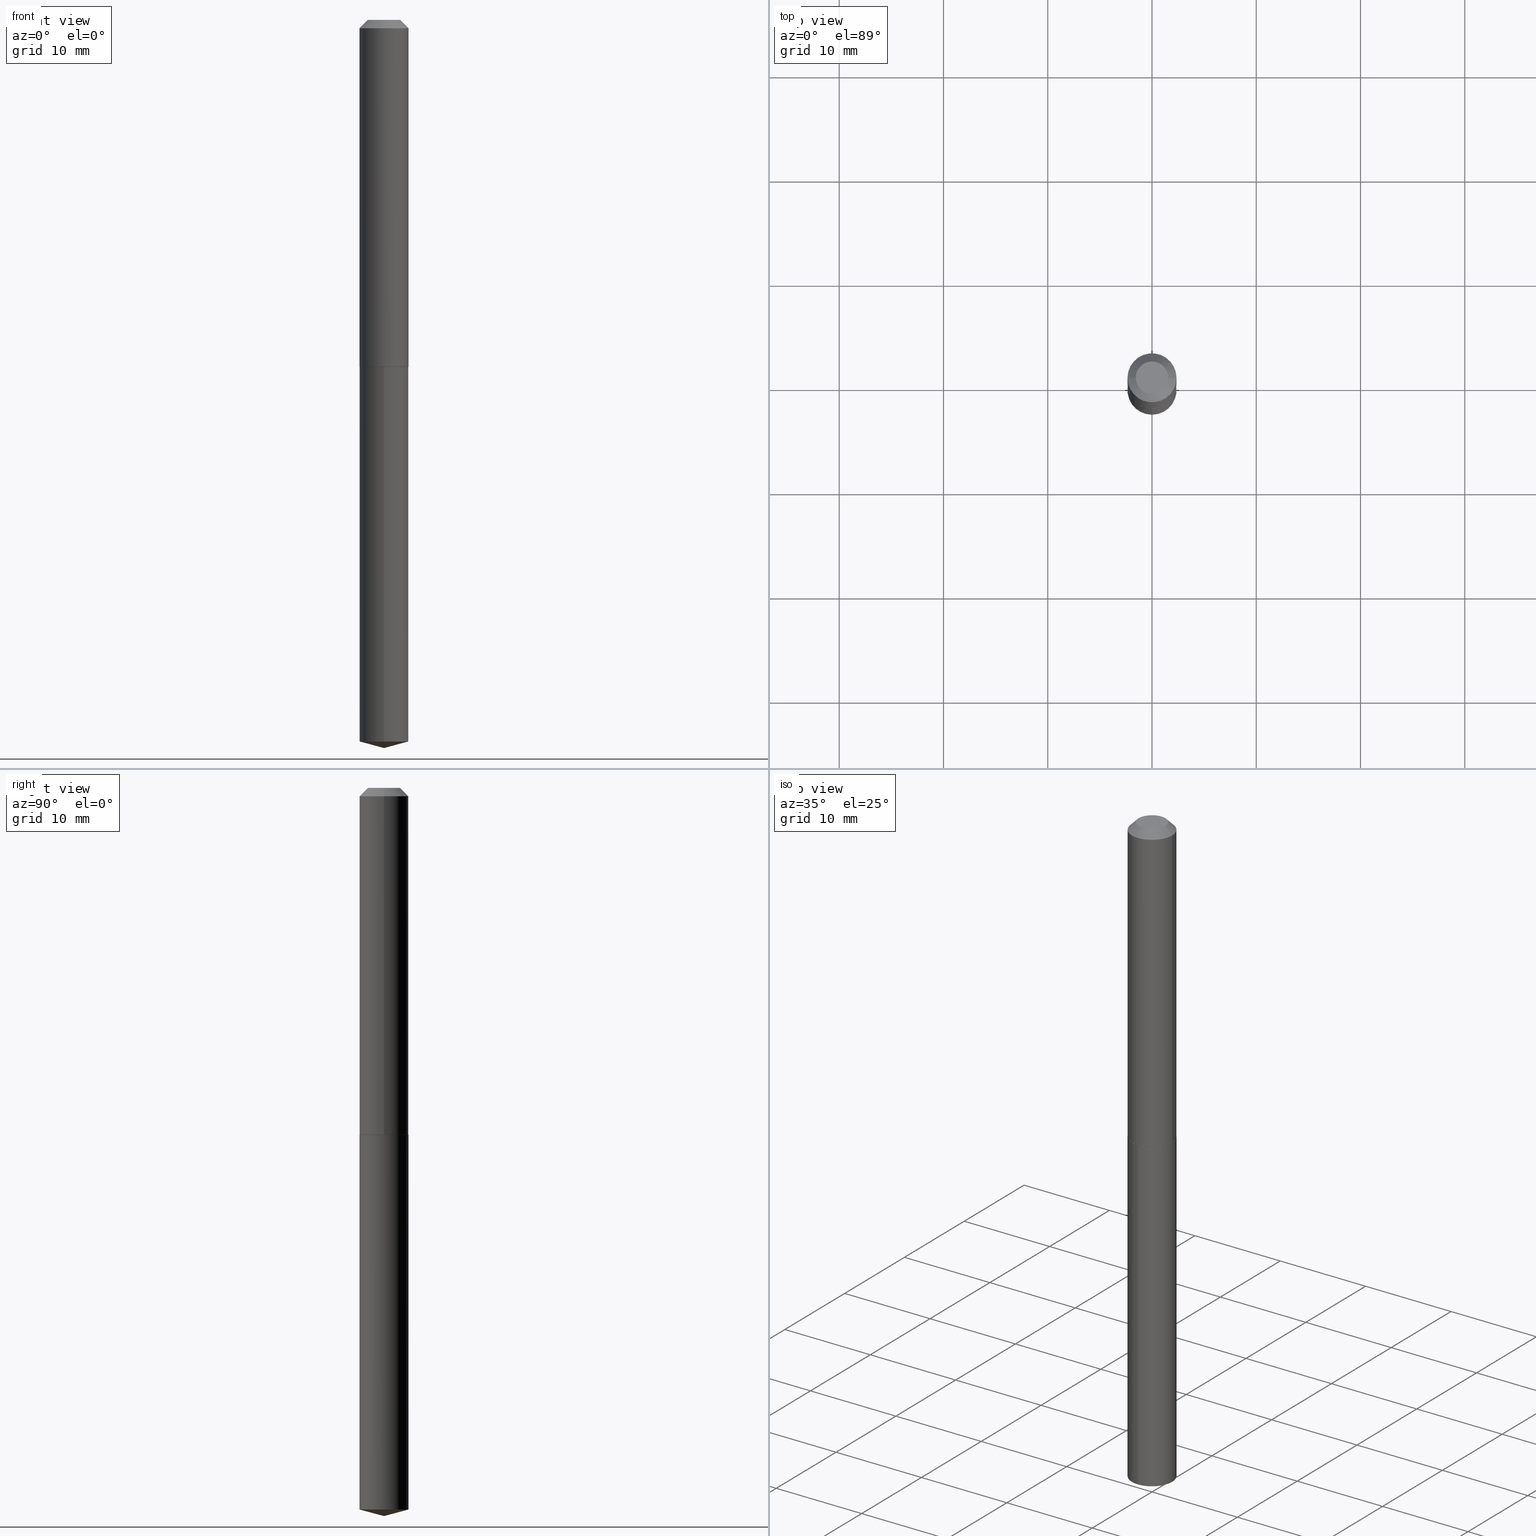
[diagram: canonical four-view strip — front | top / right | iso, engineering-drawing reading convention]
A machine part, canonical four-view strip (front | top / right | iso — engineering-drawing reading convention). The complete STEP part file that produces these views, byte-faithful:
ISO-10303-21;
HEADER;
FILE_DESCRIPTION (( 'STEP AP203' ),
    '1' );
FILE_NAME ('53013.STEP',
    '2024-04-22T18:53:55',
    ( '' ),
    ( '' ),
    'SwSTEP 2.0',
    'SolidWorks 2023',
    '' );
FILE_SCHEMA (( 'CONFIG_CONTROL_DESIGN' ));
ENDSEC;

DATA;
#1 = FACE_OUTER_BOUND ( 'NONE', #173, .T. ) ;
#2 = AXIS2_PLACEMENT_3D ( 'NONE', #155, #100, #257 ) ;
#3 = DIRECTION ( 'NONE',  ( -1.000000000000000000, 6.982962677686266711E-15, 0.000000000000000000 ) ) ;
#4 = DIRECTION ( 'NONE',  ( 1.000000000000000000, -6.982962677686266711E-15, 0.000000000000000000 ) ) ;
#5 = EDGE_LOOP ( 'NONE', ( #80, #115 ) ) ;
#6 = CIRCLE ( 'NONE', #351, 0.09249999999999999889 ) ;
#7 = CARTESIAN_POINT ( 'NONE',  ( -8.955364937464151019E-28, 1.278577642839808343E-13, 36.62007874015748143 ) ) ;
#8 = ORIENTED_EDGE ( 'NONE', *, *, #275, .F. ) ;
#9 = UNCERTAINTY_MEASURE_WITH_UNIT (LENGTH_MEASURE( 1.000000000000000082E-05 ), #371, 'distance_accuracy_value', 'NONE');
#10 = CARTESIAN_POINT ( 'NONE',  ( 3.203564136102528897E-29, -4.573840553884520788E-15, -1.310000000000000053 ) ) ;
#11 = EDGE_LOOP ( 'NONE', ( #77, #194 ) ) ;
#12 = CC_DESIGN_PERSON_AND_ORGANIZATION_ASSIGNMENT ( #290, #76, ( #381 ) ) ;
#13 = CARTESIAN_POINT ( 'NONE',  ( 6.725067430046863791E-29, -9.601533279142822010E-15, -2.750000000000000000 ) ) ;
#14 = VECTOR ( 'NONE', #357, 39.37007874015748143 ) ;
#15 =( GEOMETRIC_REPRESENTATION_CONTEXT ( 3 ) GLOBAL_UNCERTAINTY_ASSIGNED_CONTEXT ( ( #9 ) ) GLOBAL_UNIT_ASSIGNED_CONTEXT ( ( #371, #186, #159 ) ) REPRESENTATION_CONTEXT ( 'NONE', 'WORKASPACE' ) );
#16 = CALENDAR_DATE ( 2024, 22, 4 ) ;
#17 = ORIENTED_EDGE ( 'NONE', *, *, #96, .T. ) ;
#18 = APPROVAL_DATE_TIME ( #376, #29 ) ;
#19 = ORIENTED_EDGE ( 'NONE', *, *, #304, .T. ) ;
#20 = CALENDAR_DATE ( 2024, 22, 4 ) ;
#21 = CARTESIAN_POINT ( 'NONE',  ( 6.664442057366835299E-29, -9.515015476176461963E-15, -2.725214699700122090 ) ) ;
#22 = APPROVAL_ROLE ( '' ) ;
#23 = CARTESIAN_POINT ( 'NONE',  ( -0.09249999999999999889, 5.368152558471307870E-16, -0.03125000000000019429 ) ) ;
#24 = EDGE_CURVE ( 'NONE', #171, #336, #302, .T. ) ;
#25 = CARTESIAN_POINT ( 'NONE',  ( 0.06125000000000000583, -5.819551794981109879E-16, -2.449293598259395325E-19 ) ) ;
#26 = CARTESIAN_POINT ( 'NONE',  ( 3.203564136102528897E-29, -4.573840553884520788E-15, -1.310000000000000053 ) ) ;
#27 = DIRECTION ( 'NONE',  ( 1.000000000000000000, -6.982962677686265922E-15, 4.876176775795935793E-29 ) ) ;
#28 = CONICAL_SURFACE ( 'NONE', #71, 0.09250000000000017930, 0.7853981633977896726 ) ;
#29 = APPROVAL ( #378, 'UNSPECIFIED' ) ;
#30 = DIRECTION ( 'NONE',  ( -2.445468806185136597E-29, 3.491481338843145583E-15, 1.000000000000000000 ) ) ;
#31 = DIRECTION ( 'NONE',  ( -2.445479065471587317E-29, 3.491466646961025504E-15, 1.000000000000000000 ) ) ;
#32 = ADVANCED_BREP_SHAPE_REPRESENTATION ( '53013', ( #203, #73, #314 ), #15 ) ;
#33 = EDGE_CURVE ( 'NONE', #336, #65, #321, .T. ) ;
#34 = AXIS2_PLACEMENT_3D ( 'NONE', #219, #251, #225 ) ;
#35 = CARTESIAN_POINT ( 'NONE',  ( -0.06125000000000000583, 4.822608599277073214E-16, -2.449293598326509168E-19 ) ) ;
#36 = CARTESIAN_POINT ( 'NONE',  ( 0.09200000000000020661, -5.216273120231657767E-15, -1.309999999999999609 ) ) ;
#37 = EDGE_LOOP ( 'NONE', ( #360, #109, #97, #283 ) ) ;
#38 = AXIS2_PLACEMENT_3D ( 'NONE', #133, #184, #99 ) ;
#39 = DATE_TIME_ROLE ( 'creation_date' ) ;
#40 = ORIENTED_EDGE ( 'NONE', *, *, #197, .F. ) ;
#41 = DATE_AND_TIME ( #146, #206 ) ;
#42 = ORIENTED_EDGE ( 'NONE', *, *, #53, .F. ) ;
#43 = AXIS2_PLACEMENT_3D ( 'NONE', #202, #273, #340 ) ;
#44 = AXIS2_PLACEMENT_3D ( 'NONE', #26, #384, #305 ) ;
#45 = MECHANICAL_CONTEXT ( 'NONE', #328, 'mechanical' ) ;
#46 = VERTEX_POINT ( 'NONE', #13 ) ;
#47 = DIRECTION ( 'NONE',  ( -0.7071067811865453523, 2.468850131082234184E-15, -0.7071067811865496822 ) ) ;
#48 = EDGE_CURVE ( 'NONE', #65, #217, #196, .T. ) ;
#49 = DIRECTION ( 'NONE',  ( 1.000000000000000000, -6.982962677686272233E-15, 0.000000000000000000 ) ) ;
#50 = CIRCLE ( 'NONE', #137, 0.09250000000000017930 ) ;
#51 = DIRECTION ( 'NONE',  ( 2.438088387897960049E-29, -3.491481338843145188E-15, -1.000000000000000000 ) ) ;
#52 = CYLINDRICAL_SURFACE ( 'NONE', #178, 0.09250000000000008216 ) ;
#53 = EDGE_CURVE ( 'NONE', #345, #65, #298, .T. ) ;
#54 = DIRECTION ( 'NONE',  ( -2.445468806185136597E-29, 3.491481338843145583E-15, 1.000000000000000000 ) ) ;
#55 = CARTESIAN_POINT ( 'NONE',  ( 0.09249999999999999889, -7.550328395248286925E-16, -0.03125000000000019429 ) ) ;
#56 = AXIS2_PLACEMENT_3D ( 'NONE', #300, #179, #27 ) ;
#57 = APPROVAL_PERSON_ORGANIZATION ( #201, #234, #74 ) ;
#58 = DIRECTION ( 'NONE',  ( -2.445479065471587317E-29, 3.491466646961025898E-15, 1.000000000000000000 ) ) ;
#59 = EDGE_CURVE ( 'NONE', #375, #62, #373, .T. ) ;
#60 = CARTESIAN_POINT ( 'NONE',  ( -0.09250000000000017930, -3.914842782637005634E-15, -1.309500000000000108 ) ) ;
#61 = CARTESIAN_POINT ( 'NONE',  ( 6.664442057366835299E-29, -9.515015476176461963E-15, -2.725214699700122090 ) ) ;
#62 = VERTEX_POINT ( 'NONE', #147 ) ;
#63 = LOCAL_TIME ( 14, 53, 55.00000000000000000, #372 ) ;
#64 = DIRECTION ( 'NONE',  ( -2.445468806185136597E-29, 3.491481338843145583E-15, 1.000000000000000000 ) ) ;
#65 = VERTEX_POINT ( 'NONE', #295 ) ;
#66 = EDGE_CURVE ( 'NONE', #187, #127, #6, .T. ) ;
#67 = DIRECTION ( 'NONE',  ( -2.445468806185136597E-29, 3.491481338843145583E-15, 1.000000000000000000 ) ) ;
#68 = ORIENTED_EDGE ( 'NONE', *, *, #59, .F. ) ;
#69 = LINE ( 'NONE', #95, #111 ) ;
#70 = CLOSED_SHELL ( 'NONE', ( #374, #354, #289, #140, #128 ) ) ;
#71 = AXIS2_PLACEMENT_3D ( 'NONE', #180, #54, #93 ) ;
#72 = APPROVAL_STATUS ( 'not_yet_approved' ) ;
#73 = MANIFOLD_SOLID_BREP ( 'Body-Move/Copy2[2]', #385 ) ;
#74 = APPROVAL_ROLE ( '' ) ;
#75 = ORIENTED_EDGE ( 'NONE', *, *, #329, .T. ) ;
#76 = PERSON_AND_ORGANIZATION_ROLE ( 'creator' ) ;
#77 = ORIENTED_EDGE ( 'NONE', *, *, #271, .T. ) ;
#78 = AXIS2_PLACEMENT_3D ( 'NONE', #176, #89, #330 ) ;
#79 = DATE_AND_TIME ( #16, #63 ) ;
#80 = ORIENTED_EDGE ( 'NONE', *, *, #304, .F. ) ;
#81 = PERSON_AND_ORGANIZATION_ROLE ( 'design_supplier' ) ;
#82 = VERTEX_POINT ( 'NONE', #243 ) ;
#83 = PLANE ( 'NONE',  #333 ) ;
#84 = PRODUCT ( '53013', '53013', '', ( #45 ) ) ;
#85 = CIRCLE ( 'NONE', #313, 0.09249999999999999889 ) ;
#86 = FACE_OUTER_BOUND ( 'NONE', #315, .T. ) ;
#87 = DIRECTION ( 'NONE',  ( 1.000000000000000000, -6.982962677686266711E-15, 0.000000000000000000 ) ) ;
#88 = APPROVAL ( #341, 'UNSPECIFIED' ) ;
#89 = DIRECTION ( 'NONE',  ( 2.445468806185136597E-29, -3.491481338843145583E-15, -1.000000000000000000 ) ) ;
#90 = DIRECTION ( 'NONE',  ( -2.445468806185136877E-29, 3.491481338843145188E-15, 1.000000000000000000 ) ) ;
#91 = CIRCLE ( 'NONE', #172, 0.09249999999999999889 ) ;
#92 = LOCAL_TIME ( 14, 53, 55.00000000000000000, #239 ) ;
#93 = DIRECTION ( 'NONE',  ( 1.000000000000000000, -6.982962677686272233E-15, 0.000000000000000000 ) ) ;
#94 = CARTESIAN_POINT ( 'NONE',  ( 3.203564136102528336E-29, -4.573840553884519999E-15, -1.309999999999999609 ) ) ;
#95 = CARTESIAN_POINT ( 'NONE',  ( 6.725040550716364355E-29, -9.601571771873974596E-15, -2.750000000000000000 ) ) ;
#96 = EDGE_CURVE ( 'NONE', #46, #187, #143, .T. ) ;
#97 = ORIENTED_EDGE ( 'NONE', *, *, #152, .F. ) ;
#98 = VECTOR ( 'NONE', #366, 39.37007874015748143 ) ;
#99 = DIRECTION ( 'NONE',  ( 1.000000000000000000, -6.982962677686267499E-15, 4.876190086226892022E-29 ) ) ;
#100 = DIRECTION ( 'NONE',  ( -2.445479065471587317E-29, 3.491466646961025898E-15, 1.000000000000000000 ) ) ;
#101 = ORIENTED_EDGE ( 'NONE', *, *, #59, .T. ) ;
#102 = ORIENTED_EDGE ( 'NONE', *, *, #123, .F. ) ;
#103 = AXIS2_PLACEMENT_3D ( 'NONE', #276, #386, #3 ) ;
#104 = PERSON_AND_ORGANIZATION ( #161, #238 ) ;
#105 = ORIENTED_EDGE ( 'NONE', *, *, #223, .T. ) ;
#106 = PERSON_AND_ORGANIZATION_ROLE ( 'design_owner' ) ;
#107 = DIRECTION ( 'NONE',  ( -2.445468806185136877E-29, 3.491481338843145188E-15, 1.000000000000000000 ) ) ;
#108 = COORDINATED_UNIVERSAL_TIME_OFFSET ( 5, 0, .BEHIND. ) ;
#109 = ORIENTED_EDGE ( 'NONE', *, *, #116, .T. ) ;
#110 = ADVANCED_FACE ( 'NONE', ( #348 ), #83, .F. ) ;
#111 = VECTOR ( 'NONE', #131, 39.37007874015748143 ) ;
#112 = PERSON_AND_ORGANIZATION ( #161, #238 ) ;
#113 = EDGE_LOOP ( 'NONE', ( #168, #268, #369, #190 ) ) ;
#114 = COORDINATED_UNIVERSAL_TIME_OFFSET ( 5, 0, .BEHIND. ) ;
#115 = ORIENTED_EDGE ( 'NONE', *, *, #24, .F. ) ;
#116 = EDGE_CURVE ( 'NONE', #187, #82, #265, .T. ) ;
#117 = FACE_OUTER_BOUND ( 'NONE', #220, .T. ) ;
#118 = VECTOR ( 'NONE', #352, 39.37007874015748143 ) ;
#119 = APPROVAL_PERSON_ORGANIZATION ( #198, #29, #293 ) ;
#120 = CARTESIAN_POINT ( 'NONE',  ( -0.09250000000000008216, 6.572520305780932557E-16, -4.550014958485792374E-30 ) ) ;
#121 = CARTESIAN_POINT ( 'NONE',  ( 3.203564136102528897E-29, -4.573840553884520788E-15, -1.310000000000000053 ) ) ;
#122 = CARTESIAN_POINT ( 'NONE',  ( 0.000000000000000000, 0.000000000000000000, 0.000000000000000000 ) ) ;
#123 = EDGE_CURVE ( 'NONE', #158, #375, #211, .T. ) ;
#124 = VECTOR ( 'NONE', #240, 39.37007874015748143 ) ;
#125 = CYLINDRICAL_SURFACE ( 'NONE', #132, 0.09250000000000008216 ) ;
#126 = FACE_OUTER_BOUND ( 'NONE', #204, .T. ) ;
#127 = VERTEX_POINT ( 'NONE', #279 ) ;
#128 = ADVANCED_FACE ( 'NONE', ( #1 ), #350, .F. ) ;
#129 = LENGTH_MEASURE_WITH_UNIT ( LENGTH_MEASURE( 0.02539999999999999897 ), #312 );
#130 = ORIENTED_EDGE ( 'NONE', *, *, #262, .F. ) ;
#131 = DIRECTION ( 'NONE',  ( -6.745023994389855699E-15, -0.9659258262890699775, 0.2588190451025144667 ) ) ;
#132 = AXIS2_PLACEMENT_3D ( 'NONE', #327, #280, #326 ) ;
#133 = CARTESIAN_POINT ( 'NONE',  ( 5.989671091818619287E-48, -8.551662891793899026E-34, -2.449293598294692806E-19 ) ) ;
#134 = ORIENTED_EDGE ( 'NONE', *, *, #358, .F. ) ;
#135 = DATE_AND_TIME ( #233, #192 ) ;
#136 = DIRECTION ( 'NONE',  ( -1.000000000000000000, 6.982962677686265922E-15, -4.876176775795935793E-29 ) ) ;
#137 = AXIS2_PLACEMENT_3D ( 'NONE', #185, #64, #286 ) ;
#138 = CC_DESIGN_PERSON_AND_ORGANIZATION_ASSIGNMENT ( #267, #317, ( #165 ) ) ;
#139 = ORIENTED_EDGE ( 'NONE', *, *, #33, .F. ) ;
#140 = ADVANCED_FACE ( 'NONE', ( #154 ), #274, .T. ) ;
#141 = PERSON_AND_ORGANIZATION_ROLE ( 'creator' ) ;
#142 = ORIENTED_EDGE ( 'NONE', *, *, #223, .F. ) ;
#143 = LINE ( 'NONE', #380, #124 ) ;
#144 = AXIS2_PLACEMENT_3D ( 'NONE', #94, #67, #309 ) ;
#145 = LOCAL_TIME ( 14, 53, 55.00000000000000000, #114 ) ;
#146 = CALENDAR_DATE ( 2024, 22, 4 ) ;
#147 = CARTESIAN_POINT ( 'NONE',  ( -0.09249999999999999889, -1.683349771948880148E-15, -0.03125000000000019429 ) ) ;
#148 = DIRECTION ( 'NONE',  ( 2.445479065471587317E-29, -3.491466646961025504E-15, -1.000000000000000000 ) ) ;
#149 = LINE ( 'NONE', #60, #118 ) ;
#150 = PRODUCT_DEFINITION_SHAPE ( 'NONE', 'NONE',  #210 ) ;
#151 = CARTESIAN_POINT ( 'NONE',  ( -6.459240476859475444E-16, -0.09250000000000457856, -1.309999999999999609 ) ) ;
#152 = EDGE_CURVE ( 'NONE', #377, #82, #344, .T. ) ;
#153 = CARTESIAN_POINT ( 'NONE',  ( 3.203564136102528897E-29, -4.573840553884520788E-15, -1.310000000000000053 ) ) ;
#154 = FACE_OUTER_BOUND ( 'NONE', #163, .T. ) ;
#155 = CARTESIAN_POINT ( 'NONE',  ( -8.955364937464151019E-28, 1.278577642839808343E-13, 36.62007874015748143 ) ) ;
#156 = ADVANCED_FACE ( 'NONE', ( #250 ), #125, .T. ) ;
#157 = CYLINDRICAL_SURFACE ( 'NONE', #324, 0.09249999999999999889 ) ;
#158 = VERTEX_POINT ( 'NONE', #25 ) ;
#159 =( NAMED_UNIT ( * ) SI_UNIT ( $, .STERADIAN. ) SOLID_ANGLE_UNIT ( ) );
#160 = AXIS2_PLACEMENT_3D ( 'NONE', #235, #342, #49 ) ;
#161 = PERSON ( 'UNSPECIFIED', 'UNSPECIFIED', 'UNSPECIFIED', ('UNSPECIFIED'), ('UNSPECIFIED'), ('UNSPECIFIED') ) ;
#162 = EDGE_CURVE ( 'NONE', #127, #377, #390, .T. ) ;
#163 = EDGE_LOOP ( 'NONE', ( #252, #261, #323, #142 ) ) ;
#164 = CARTESIAN_POINT ( 'NONE',  ( 0.09250000000000017930, -5.218018860901080849E-15, -1.309500000000000108 ) ) ;
#165 = SECURITY_CLASSIFICATION ( '', '', #169 ) ;
#166 = ADVANCED_FACE ( 'NONE', ( #245 ), #52, .T. ) ;
#167 = CARTESIAN_POINT ( 'NONE',  ( 0.000000000000000000, 0.000000000000000000, 0.000000000000000000 ) ) ;
#168 = ORIENTED_EDGE ( 'NONE', *, *, #188, .F. ) ;
#169 = SECURITY_CLASSIFICATION_LEVEL ( 'unclassified' ) ;
#170 = EDGE_LOOP ( 'NONE', ( #19, #258, #134, #139 ) ) ;
#171 = VERTEX_POINT ( 'NONE', #175 ) ;
#172 = AXIS2_PLACEMENT_3D ( 'NONE', #61, #359, #181 ) ;
#173 = EDGE_LOOP ( 'NONE', ( #232, #105 ) ) ;
#174 = ADVANCED_FACE ( 'NONE', ( #86 ), #28, .T. ) ;
#175 = CARTESIAN_POINT ( 'NONE',  ( -0.09200000000000020661, -3.917492009811115258E-15, -1.309999999999999609 ) ) ;
#176 = CARTESIAN_POINT ( 'NONE',  ( 7.642090019328598283E-31, -1.091087918388489651E-16, -0.03125000000000019429 ) ) ;
#177 = EDGE_CURVE ( 'NONE', #217, #62, #85, .T. ) ;
#178 = AXIS2_PLACEMENT_3D ( 'NONE', #122, #247, #325 ) ;
#179 = DIRECTION ( 'NONE',  ( -2.438088387897960049E-29, 3.491481338843145188E-15, 1.000000000000000000 ) ) ;
#180 = CARTESIAN_POINT ( 'NONE',  ( 3.202341401699436656E-29, -4.572094813215099285E-15, -1.309500000000000108 ) ) ;
#181 = DIRECTION ( 'NONE',  ( -6.982962677686265922E-15, -1.000000000000000000, 5.906698364679487997E-15 ) ) ;
#182 = ADVANCED_FACE ( 'NONE', ( #214 ), #246, .F. ) ;
#183 = AXIS2_PLACEMENT_3D ( 'NONE', #301, #30, #299 ) ;
#184 = DIRECTION ( 'NONE',  ( -2.445468806185136597E-29, 3.491481338843145583E-15, 1.000000000000000000 ) ) ;
#185 = CARTESIAN_POINT ( 'NONE',  ( 3.202341401699436656E-29, -4.572094813215099285E-15, -1.309500000000000108 ) ) ;
#186 =( NAMED_UNIT ( * ) PLANE_ANGLE_UNIT ( ) SI_UNIT ( $, .RADIAN. ) );
#187 = VERTEX_POINT ( 'NONE', #331 ) ;
#188 = EDGE_CURVE ( 'NONE', #345, #62, #389, .T. ) ;
#189 = FACE_OUTER_BOUND ( 'NONE', #170, .T. ) ;
#190 = ORIENTED_EDGE ( 'NONE', *, *, #349, .F. ) ;
#191 = CONICAL_SURFACE ( 'NONE', #2, 146.9311341562608959, 1.308996938995757198 ) ;
#192 = LOCAL_TIME ( 14, 53, 55.00000000000000000, #108 ) ;
#193 = PERSON_AND_ORGANIZATION ( #161, #238 ) ;
#194 = ORIENTED_EDGE ( 'NONE', *, *, #123, .T. ) ;
#195 = SHAPE_DEFINITION_REPRESENTATION ( #150, #32 ) ;
#196 = LINE ( 'NONE', #292, #272 ) ;
#197 = EDGE_CURVE ( 'NONE', #171, #345, #149, .T. ) ;
#198 = PERSON_AND_ORGANIZATION ( #161, #238 ) ;
#199 = ORIENTED_EDGE ( 'NONE', *, *, #48, .F. ) ;
#200 = VECTOR ( 'NONE', #90, 39.37007874015748143 ) ;
#201 = PERSON_AND_ORGANIZATION ( #161, #238 ) ;
#202 = CARTESIAN_POINT ( 'NONE',  ( 3.203564136102528336E-29, -4.573840553884519999E-15, -1.309999999999999609 ) ) ;
#203 = MANIFOLD_SOLID_BREP ( 'Body-Move/Copy2[1]', #70 ) ;
#204 = EDGE_LOOP ( 'NONE', ( #222, #316, #266 ) ) ;
#205 = CARTESIAN_POINT ( 'NONE',  ( 2.994835545909309644E-48, -4.275831445896949513E-34, -1.224646799147346403E-19 ) ) ;
#206 = LOCAL_TIME ( 14, 53, 55.00000000000000000, #263 ) ;
#207 = DIRECTION ( 'NONE',  ( -2.445479065471587317E-29, 3.491466646961025898E-15, 1.000000000000000000 ) ) ;
#208 = DIRECTION ( 'NONE',  ( -6.982962677686265922E-15, -1.000000000000000000, 2.953349182339743999E-15 ) ) ;
#209 = CARTESIAN_POINT ( 'NONE',  ( 6.572520305781246129E-16, 0.09249999999999543310, -1.310000000000000275 ) ) ;
#210 = PRODUCT_DEFINITION ( 'UNKNOWN', '', #381, #231 ) ;
#211 = CIRCLE ( 'NONE', #183, 0.06125000000000000583 ) ;
#212 = CC_DESIGN_APPROVAL ( #29, ( #210 ) ) ;
#213 = FACE_OUTER_BOUND ( 'NONE', #319, .T. ) ;
#214 = FACE_OUTER_BOUND ( 'NONE', #5, .T. ) ;
#215 = ADVANCED_FACE ( 'NONE', ( #213 ), #284, .T. ) ;
#216 = LINE ( 'NONE', #338, #98 ) ;
#217 = VERTEX_POINT ( 'NONE', #55 ) ;
#218 = CONICAL_SURFACE ( 'NONE', #264, 146.9311341562608959, 1.308996938995757198 ) ;
#219 = CARTESIAN_POINT ( 'NONE',  ( 3.202341401699436656E-29, -4.572094813215099285E-15, -1.309500000000000108 ) ) ;
#220 = EDGE_LOOP ( 'NONE', ( #229, #237, #101, #226 ) ) ;
#221 = CARTESIAN_POINT ( 'NONE',  ( 7.642090019328598283E-31, -1.091087918388489651E-16, -0.03125000000000019429 ) ) ;
#222 = ORIENTED_EDGE ( 'NONE', *, *, #96, .F. ) ;
#223 = EDGE_CURVE ( 'NONE', #82, #377, #306, .T. ) ;
#224 = DIMENSIONAL_EXPONENTS ( 1.000000000000000000, 0.000000000000000000, 0.000000000000000000, 0.000000000000000000, 0.000000000000000000, 0.000000000000000000, 0.000000000000000000 ) ;
#225 = DIRECTION ( 'NONE',  ( 1.000000000000000000, -6.982962677686272233E-15, 0.000000000000000000 ) ) ;
#226 = ORIENTED_EDGE ( 'NONE', *, *, #349, .T. ) ;
#227 = APPLICATION_PROTOCOL_DEFINITION ( 'international standard', 'config_control_design', 1994, #328 ) ;
#228 = CONICAL_SURFACE ( 'NONE', #34, 0.09250000000000017930, 0.7853981633977896726 ) ;
#229 = ORIENTED_EDGE ( 'NONE', *, *, #329, .F. ) ;
#230 = APPROVAL_PERSON_ORGANIZATION ( #193, #88, #22 ) ;
#231 = DESIGN_CONTEXT ( 'detailed design', #361, 'design' ) ;
#232 = ORIENTED_EDGE ( 'NONE', *, *, #152, .T. ) ;
#233 = CALENDAR_DATE ( 2024, 22, 4 ) ;
#234 = APPROVAL ( #72, 'UNSPECIFIED' ) ;
#235 = CARTESIAN_POINT ( 'NONE',  ( 3.202341401699436656E-29, -4.572094813215099285E-15, -1.309500000000000108 ) ) ;
#236 = DIRECTION ( 'NONE',  ( 1.000000000000000000, 0.000000000000000000, 0.000000000000000000 ) ) ;
#237 = ORIENTED_EDGE ( 'NONE', *, *, #271, .F. ) ;
#238 = ORGANIZATION ( 'UNSPECIFIED', 'UNSPECIFIED', '' ) ;
#239 = COORDINATED_UNIVERSAL_TIME_OFFSET ( 5, 0, .BEHIND. ) ;
#240 = DIRECTION ( 'NONE',  ( 6.863315791527710037E-15, 0.9659258262890718649, 0.2588190451025076944 ) ) ;
#241 = ADVANCED_FACE ( 'NONE', ( #117 ), #291, .T. ) ;
#242 = CALENDAR_DATE ( 2024, 22, 4 ) ;
#243 = CARTESIAN_POINT ( 'NONE',  ( 6.572520305781594214E-16, 0.09249999999999543310, -1.310000000000000275 ) ) ;
#244 = DIRECTION ( 'NONE',  ( -6.982962677686265922E-15, -1.000000000000000000, 2.953349182339743999E-15 ) ) ;
#245 = FACE_OUTER_BOUND ( 'NONE', #367, .T. ) ;
#246 = PLANE ( 'NONE',  #56 ) ;
#247 = DIRECTION ( 'NONE',  ( -2.445468806185136597E-29, 3.491481338843145583E-15, 1.000000000000000000 ) ) ;
#248 = AXIS2_PLACEMENT_3D ( 'NONE', #121, #148, #303 ) ;
#249 = CC_DESIGN_APPROVAL ( #88, ( #381 ) ) ;
#250 = FACE_OUTER_BOUND ( 'NONE', #113, .T. ) ;
#251 = DIRECTION ( 'NONE',  ( -2.445468806185136597E-29, 3.491481338843145583E-15, 1.000000000000000000 ) ) ;
#252 = ORIENTED_EDGE ( 'NONE', *, *, #116, .F. ) ;
#253 = CC_DESIGN_PERSON_AND_ORGANIZATION_ASSIGNMENT ( #346, #81, ( #381 ) ) ;
#254 = DIRECTION ( 'NONE',  ( -6.982962677686265922E-15, -1.000000000000000000, 2.953349182339743999E-15 ) ) ;
#255 = ORIENTED_EDGE ( 'NONE', *, *, #358, .T. ) ;
#256 = AXIS2_PLACEMENT_3D ( 'NONE', #153, #58, #208 ) ;
#257 = DIRECTION ( 'NONE',  ( -6.982962677686266711E-15, -1.000000000000000000, 3.510303681827500016E-15 ) ) ;
#258 = ORIENTED_EDGE ( 'NONE', *, *, #197, .T. ) ;
#259 = DIRECTION ( 'NONE',  ( -2.445468806185136597E-29, 3.491481338843145583E-15, 1.000000000000000000 ) ) ;
#260 = CC_DESIGN_DATE_AND_TIME_ASSIGNMENT ( #135, #39, ( #210 ) ) ;
#261 = ORIENTED_EDGE ( 'NONE', *, *, #66, .T. ) ;
#262 = EDGE_CURVE ( 'NONE', #46, #127, #69, .T. ) ;
#263 = COORDINATED_UNIVERSAL_TIME_OFFSET ( 5, 0, .BEHIND. ) ;
#264 = AXIS2_PLACEMENT_3D ( 'NONE', #7, #332, #368 ) ;
#265 = LINE ( 'NONE', #209, #337 ) ;
#266 = ORIENTED_EDGE ( 'NONE', *, *, #66, .F. ) ;
#267 = PERSON_AND_ORGANIZATION ( #161, #238 ) ;
#268 = ORIENTED_EDGE ( 'NONE', *, *, #53, .T. ) ;
#269 = DIRECTION ( 'NONE',  ( 0.000000000000000000, 0.000000000000000000, 1.000000000000000000 ) ) ;
#270 = ORIENTED_EDGE ( 'NONE', *, *, #177, .F. ) ;
#271 = EDGE_CURVE ( 'NONE', #375, #158, #379, .T. ) ;
#272 = VECTOR ( 'NONE', #107, 39.37007874015748143 ) ;
#273 = DIRECTION ( 'NONE',  ( -2.445468806185136597E-29, 3.491481338843145583E-15, 1.000000000000000000 ) ) ;
#274 = CYLINDRICAL_SURFACE ( 'NONE', #365, 0.09249999999999999889 ) ;
#275 = EDGE_CURVE ( 'NONE', #127, #187, #91, .T. ) ;
#276 = CARTESIAN_POINT ( 'NONE',  ( 7.642090019328598283E-31, -1.091087918388489651E-16, -0.03125000000000019429 ) ) ;
#277 = CC_DESIGN_APPROVAL ( #234, ( #165 ) ) ;
#278 = DIRECTION ( 'NONE',  ( -2.445468806185136597E-29, 3.491481338843145583E-15, 1.000000000000000000 ) ) ;
#279 = CARTESIAN_POINT ( 'NONE',  ( -6.459240476859130317E-16, -0.09250000000000951905, -2.725214699700121646 ) ) ;
#280 = DIRECTION ( 'NONE',  ( -2.445468806185136597E-29, 3.491481338843145583E-15, 1.000000000000000000 ) ) ;
#281 = VECTOR ( 'NONE', #47, 39.37007874015748143 ) ;
#282 = CARTESIAN_POINT ( 'NONE',  ( -6.459240476859475444E-16, -0.09250000000000457856, -1.309999999999999609 ) ) ;
#283 = ORIENTED_EDGE ( 'NONE', *, *, #162, .F. ) ;
#284 = CONICAL_SURFACE ( 'NONE', #78, 0.09249999999999999889, 0.7853981633974452814 ) ;
#285 = CARTESIAN_POINT ( 'NONE',  ( -0.09250000000000017930, -3.914842782637005634E-15, -1.309500000000000108 ) ) ;
#286 = DIRECTION ( 'NONE',  ( 1.000000000000000000, -6.982962677686272233E-15, 0.000000000000000000 ) ) ;
#287 = APPROVAL_DATE_TIME ( #41, #88 ) ;
#288 = ORIENTED_EDGE ( 'NONE', *, *, #33, .T. ) ;
#289 = ADVANCED_FACE ( 'NONE', ( #126 ), #191, .T. ) ;
#290 = PERSON_AND_ORGANIZATION ( #161, #238 ) ;
#291 = CONICAL_SURFACE ( 'NONE', #103, 0.09249999999999999889, 0.7853981633974452814 ) ;
#292 = CARTESIAN_POINT ( 'NONE',  ( 0.09250000000000008216, -6.459240476859802821E-16, 4.510463517611244952E-30 ) ) ;
#293 = APPROVAL_ROLE ( '' ) ;
#294 = DIRECTION ( 'NONE',  ( 0.7071067811867889352, -2.468850131084785360E-15, 0.7071067811863060992 ) ) ;
#295 = CARTESIAN_POINT ( 'NONE',  ( 0.09250000000000017930, -5.218018860901080849E-15, -1.309500000000000108 ) ) ;
#296 = PRODUCT_RELATED_PRODUCT_CATEGORY ( 'detail', '', ( #84 ) ) ;
#297 = ORIENTED_EDGE ( 'NONE', *, *, #177, .T. ) ;
#298 = CIRCLE ( 'NONE', #160, 0.09250000000000017930 ) ;
#299 = DIRECTION ( 'NONE',  ( 1.000000000000000000, -6.982962677686267499E-15, 4.876190086226892022E-29 ) ) ;
#300 = CARTESIAN_POINT ( 'NONE',  ( 3.203564136102528897E-29, -4.573840553884520788E-15, -1.310000000000000053 ) ) ;
#301 = CARTESIAN_POINT ( 'NONE',  ( 5.989671091818619287E-48, -8.551662891793899026E-34, -2.449293598294692806E-19 ) ) ;
#302 = CIRCLE ( 'NONE', #43, 0.09200000000000020661 ) ;
#303 = DIRECTION ( 'NONE',  ( 6.982962677686265922E-15, 1.000000000000000000, -3.491466646961025504E-15 ) ) ;
#304 = EDGE_CURVE ( 'NONE', #336, #171, #387, .T. ) ;
#305 = DIRECTION ( 'NONE',  ( -6.982962677686265922E-15, -1.000000000000000000, 2.953349182339743999E-15 ) ) ;
#306 = CIRCLE ( 'NONE', #44, 0.09249999999999999889 ) ;
#307 = FACE_OUTER_BOUND ( 'NONE', #37, .T. ) ;
#308 = ADVANCED_FACE ( 'NONE', ( #189 ), #228, .T. ) ;
#309 = DIRECTION ( 'NONE',  ( 1.000000000000000000, -6.982962677686264344E-15, 0.000000000000000000 ) ) ;
#310 = ORIENTED_EDGE ( 'NONE', *, *, #24, .T. ) ;
#311 = CC_DESIGN_PERSON_AND_ORGANIZATION_ASSIGNMENT ( #112, #141, ( #210 ) ) ;
#312 =( LENGTH_UNIT ( ) NAMED_UNIT ( * ) SI_UNIT ( $, .METRE. ) );
#313 = AXIS2_PLACEMENT_3D ( 'NONE', #353, #278, #87 ) ;
#314 = AXIS2_PLACEMENT_3D ( 'NONE', #167, #269, #236 ) ;
#315 = EDGE_LOOP ( 'NONE', ( #40, #310, #288, #42 ) ) ;
#316 = ORIENTED_EDGE ( 'NONE', *, *, #262, .T. ) ;
#317 = PERSON_AND_ORGANIZATION_ROLE ( 'classification_officer' ) ;
#318 = CIRCLE ( 'NONE', #356, 0.09249999999999999889 ) ;
#319 = EDGE_LOOP ( 'NONE', ( #102, #75, #297, #68 ) ) ;
#320 = DATE_TIME_ROLE ( 'classification_date' ) ;
#321 = LINE ( 'NONE', #164, #364 ) ;
#322 = EDGE_LOOP ( 'NONE', ( #130, #17, #8 ) ) ;
#323 = ORIENTED_EDGE ( 'NONE', *, *, #162, .T. ) ;
#324 = AXIS2_PLACEMENT_3D ( 'NONE', #10, #362, #254 ) ;
#325 = DIRECTION ( 'NONE',  ( 1.000000000000000000, -6.982962677686267499E-15, 4.876176775795936353E-29 ) ) ;
#326 = DIRECTION ( 'NONE',  ( 1.000000000000000000, -6.982962677686267499E-15, 4.876176775795936353E-29 ) ) ;
#327 = CARTESIAN_POINT ( 'NONE',  ( 0.000000000000000000, 0.000000000000000000, 0.000000000000000000 ) ) ;
#328 = APPLICATION_CONTEXT ( 'configuration controlled 3d designs of mechanical parts and assemblies' ) ;
#329 = EDGE_CURVE ( 'NONE', #158, #217, #216, .T. ) ;
#330 = DIRECTION ( 'NONE',  ( -1.000000000000000000, 6.982962677686266711E-15, 0.000000000000000000 ) ) ;
#331 = CARTESIAN_POINT ( 'NONE',  ( 6.572520305781593228E-16, 0.09249999999999049261, -2.725214699700122534 ) ) ;
#332 = DIRECTION ( 'NONE',  ( -2.445479065471587317E-29, 3.491466646961025898E-15, 1.000000000000000000 ) ) ;
#333 = AXIS2_PLACEMENT_3D ( 'NONE', #205, #51, #136 ) ;
#334 = FACE_OUTER_BOUND ( 'NONE', #322, .T. ) ;
#335 = CC_DESIGN_DATE_AND_TIME_ASSIGNMENT ( #343, #320, ( #165 ) ) ;
#336 = VERTEX_POINT ( 'NONE', #36 ) ;
#337 = VECTOR ( 'NONE', #31, 39.37007874015748143 ) ;
#338 = CARTESIAN_POINT ( 'NONE',  ( 0.09249999999999999889, -7.437048566327157189E-16, -0.03125000000000019429 ) ) ;
#339 = APPROVAL_DATE_TIME ( #79, #234 ) ;
#340 = DIRECTION ( 'NONE',  ( 1.000000000000000000, -6.982962677686264344E-15, 0.000000000000000000 ) ) ;
#341 = APPROVAL_STATUS ( 'not_yet_approved' ) ;
#342 = DIRECTION ( 'NONE',  ( -2.445468806185136597E-29, 3.491481338843145583E-15, 1.000000000000000000 ) ) ;
#343 = DATE_AND_TIME ( #242, #145 ) ;
#344 = CIRCLE ( 'NONE', #256, 0.09249999999999999889 ) ;
#345 = VERTEX_POINT ( 'NONE', #285 ) ;
#346 = PERSON_AND_ORGANIZATION ( #161, #238 ) ;
#347 = DIRECTION ( 'NONE',  ( -6.982962677686265922E-15, -1.000000000000000000, 5.906698364679487997E-15 ) ) ;
#348 = FACE_OUTER_BOUND ( 'NONE', #11, .T. ) ;
#349 = EDGE_CURVE ( 'NONE', #62, #217, #318, .T. ) ;
#350 = PLANE ( 'NONE',  #248 ) ;
#351 = AXIS2_PLACEMENT_3D ( 'NONE', #21, #383, #347 ) ;
#352 = DIRECTION ( 'NONE',  ( -0.7071067811867889352, 7.493145998871226640E-15, 0.7071067811863060992 ) ) ;
#353 = CARTESIAN_POINT ( 'NONE',  ( 7.642090019328598283E-31, -1.091087918388489651E-16, -0.03125000000000019429 ) ) ;
#354 = ADVANCED_FACE ( 'NONE', ( #334 ), #218, .T. ) ;
#355 = CARTESIAN_POINT ( 'NONE',  ( 3.203564136102528897E-29, -4.573840553884520788E-15, -1.310000000000000053 ) ) ;
#356 = AXIS2_PLACEMENT_3D ( 'NONE', #221, #259, #4 ) ;
#357 = DIRECTION ( 'NONE',  ( -2.445479065471587317E-29, 3.491466646961025504E-15, 1.000000000000000000 ) ) ;
#358 = EDGE_CURVE ( 'NONE', #65, #345, #50, .T. ) ;
#359 = DIRECTION ( 'NONE',  ( -2.445479065471587317E-29, 3.491466646961025898E-15, 1.000000000000000000 ) ) ;
#360 = ORIENTED_EDGE ( 'NONE', *, *, #275, .T. ) ;
#361 = APPLICATION_CONTEXT ( 'configuration controlled 3d designs of mechanical parts and assemblies' ) ;
#362 = DIRECTION ( 'NONE',  ( -2.445479065471587317E-29, 3.491466646961025898E-15, 1.000000000000000000 ) ) ;
#363 = ORIENTED_EDGE ( 'NONE', *, *, #188, .T. ) ;
#364 = VECTOR ( 'NONE', #294, 39.37007874015748143 ) ;
#365 = AXIS2_PLACEMENT_3D ( 'NONE', #355, #207, #244 ) ;
#366 = DIRECTION ( 'NONE',  ( 0.7071067811865453523, -7.319954787623248157E-15, -0.7071067811865496822 ) ) ;
#367 = EDGE_LOOP ( 'NONE', ( #255, #363, #270, #199 ) ) ;
#368 = DIRECTION ( 'NONE',  ( -6.982962677686266711E-15, -1.000000000000000000, 3.510303681827500016E-15 ) ) ;
#369 = ORIENTED_EDGE ( 'NONE', *, *, #48, .T. ) ;
#370 = CC_DESIGN_PERSON_AND_ORGANIZATION_ASSIGNMENT ( #104, #106, ( #84 ) ) ;
#371 =( CONVERSION_BASED_UNIT ( 'INCH', #129 ) LENGTH_UNIT ( ) NAMED_UNIT ( #224 ) );
#372 = COORDINATED_UNIVERSAL_TIME_OFFSET ( 5, 0, .BEHIND. ) ;
#373 = LINE ( 'NONE', #23, #281 ) ;
#374 = ADVANCED_FACE ( 'NONE', ( #307 ), #157, .T. ) ;
#375 = VERTEX_POINT ( 'NONE', #35 ) ;
#376 = DATE_AND_TIME ( #20, #92 ) ;
#377 = VERTEX_POINT ( 'NONE', #282 ) ;
#378 = APPROVAL_STATUS ( 'not_yet_approved' ) ;
#379 = CIRCLE ( 'NONE', #38, 0.06125000000000000583 ) ;
#380 = CARTESIAN_POINT ( 'NONE',  ( 6.725067665746864091E-29, -9.601533279142822010E-15, -2.750000000000000000 ) ) ;
#381 = PRODUCT_DEFINITION_FORMATION_WITH_SPECIFIED_SOURCE ( 'ANY', '', #84, .NOT_KNOWN. ) ;
#382 = APPLICATION_PROTOCOL_DEFINITION ( 'international standard', 'config_control_design', 1994, #361 ) ;
#383 = DIRECTION ( 'NONE',  ( -2.445479065471587317E-29, 3.491466646961025898E-15, 1.000000000000000000 ) ) ;
#384 = DIRECTION ( 'NONE',  ( -2.445479065471587317E-29, 3.491466646961025898E-15, 1.000000000000000000 ) ) ;
#385 = CLOSED_SHELL ( 'NONE', ( #215, #166, #308, #182, #174, #156, #241, #110 ) ) ;
#386 = DIRECTION ( 'NONE',  ( 2.445468806185136597E-29, -3.491481338843145583E-15, -1.000000000000000000 ) ) ;
#387 = CIRCLE ( 'NONE', #144, 0.09200000000000020661 ) ;
#388 = CC_DESIGN_SECURITY_CLASSIFICATION ( #165, ( #381 ) ) ;
#389 = LINE ( 'NONE', #120, #200 ) ;
#390 = LINE ( 'NONE', #151, #14 ) ;
ENDSEC;
END-ISO-10303-21;
